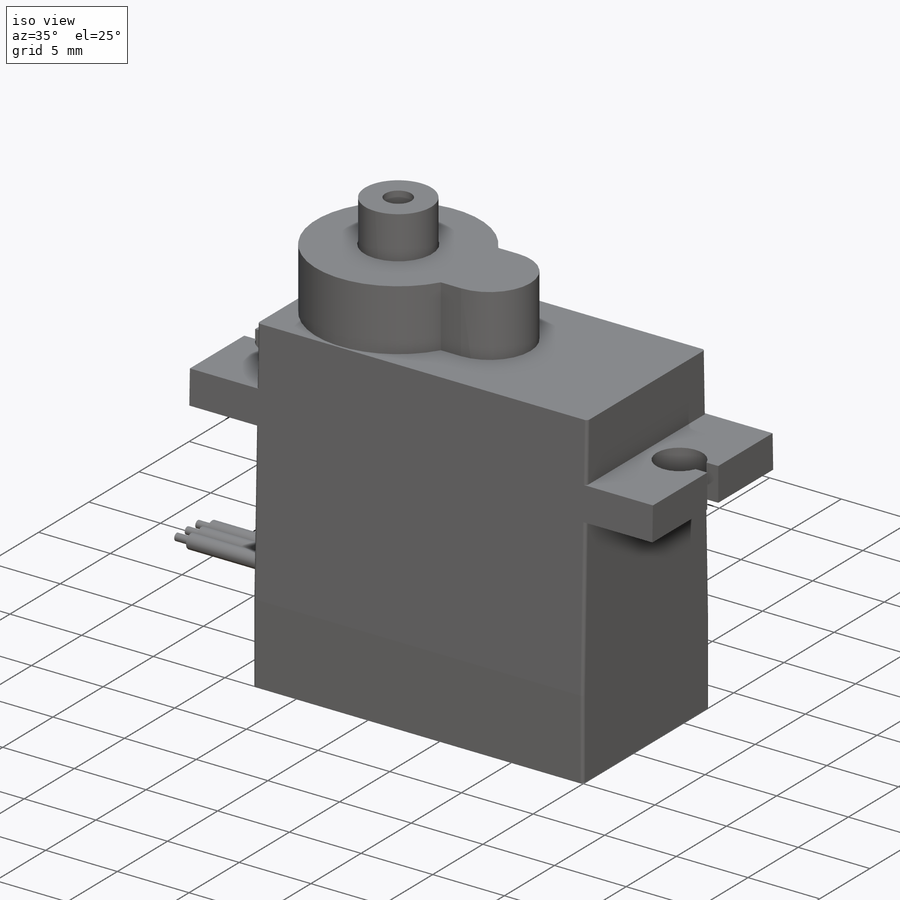
[diagram: iso view]
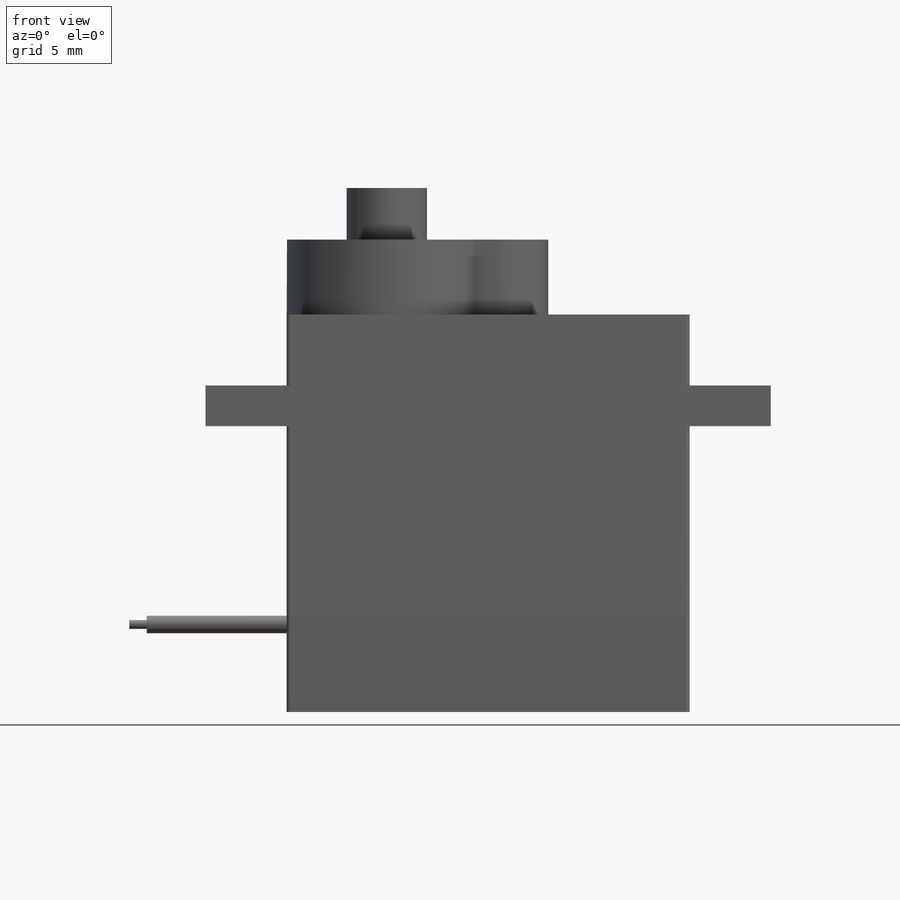
[diagram: front view]
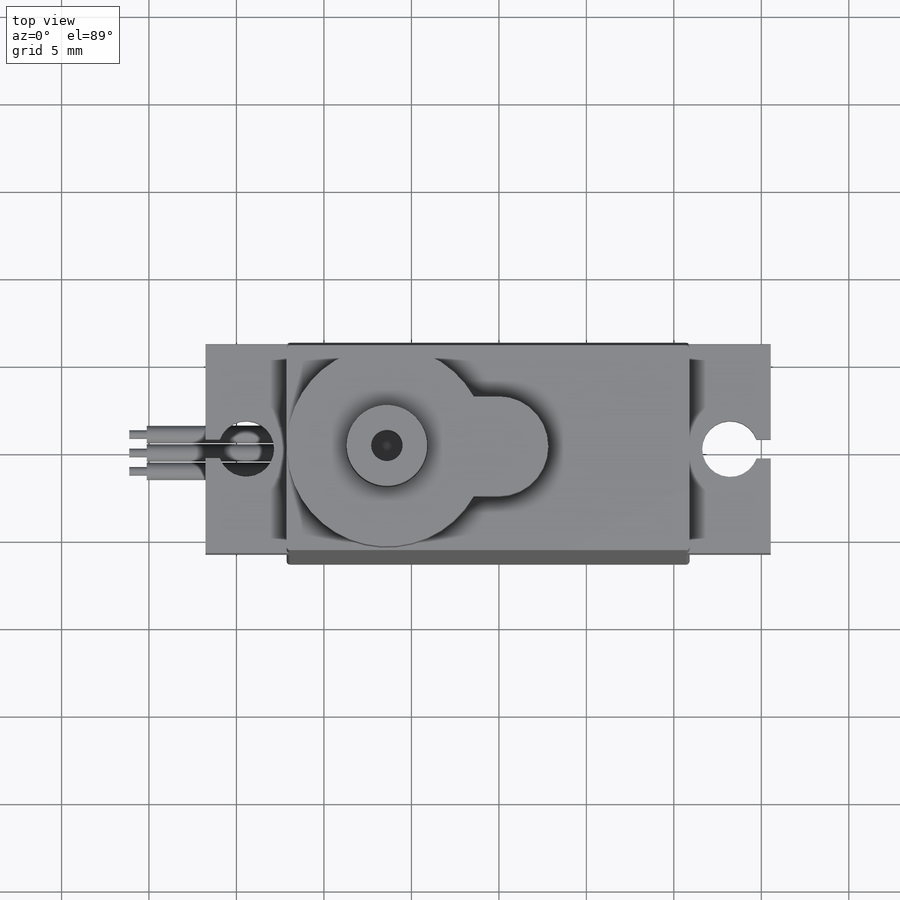
[diagram: top view]
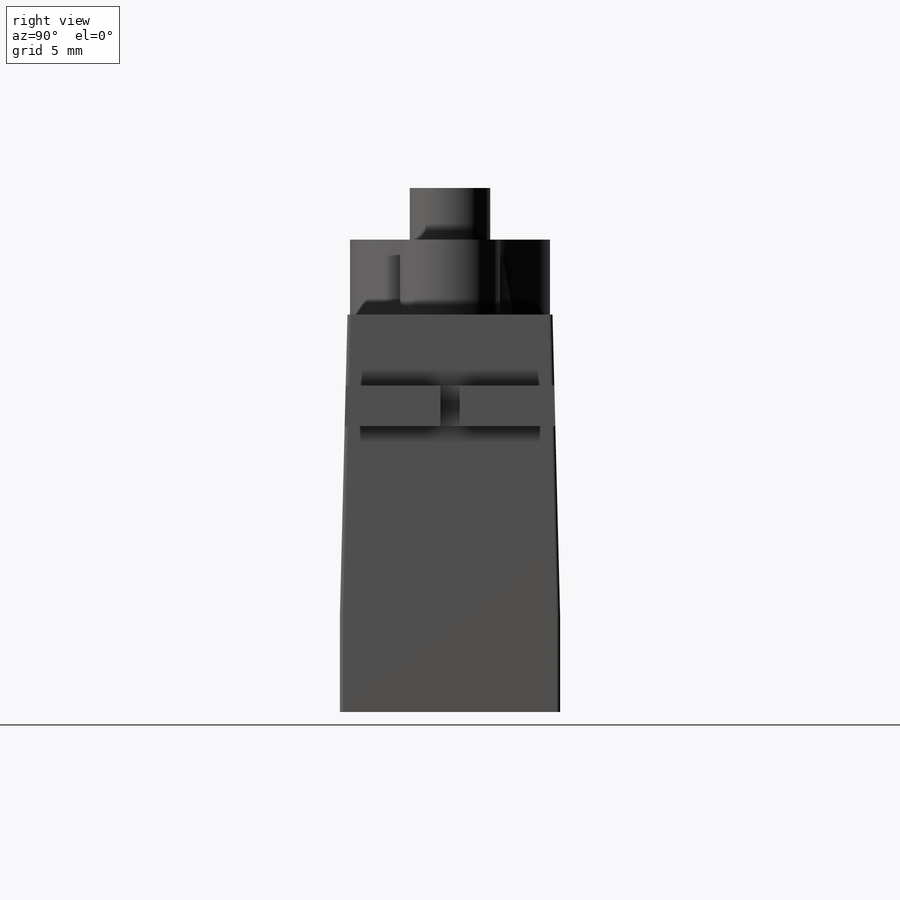
[diagram: right view]
SOLIDWORKS PART (.sldprt)
format: sldprt  version: not decoded by parser v0  size: 491,008 bytes
history: native  units: mm
features: sketch x13, cut_extrude x6, extrude x5, mirror x2, fillet x2, material x1, plane x1 + 2 further entries (+13 scaffold rows collapsed)
feature tree (45):
  scaffold x13  (default folders/planes/origin — collapsed)
  material  "Material <not specified>"
  "Y-Axis"
  "Z-Axis"
  sketch  "Sketch1"  dims[c1.D1=2.32mm c1.D2=32.31mm c1.D3=23.03mm c1.D4=16.34mm c1.D5=22.72mm c1.D6=7.13mm c1.D7=15.9mm c1.D8=0.9mm c1.D9=4.7mm c1.D10=29.3mm c1.D11=4.385mm c2.D8=~4.785394mm]
  extrude  "Boss-Extrude1"  Depth=12.59mm
  sketch  "Sketch2"  dims[D1=11.45mm D2=5.7mm D3=14.95mm]
  extrude  "Boss-Extrude2"  Depth=4.28mm
  sketch  "Sketch11"  dims[D1=5.86mm D2=5.5mm D3=17.22mm]
  cut_extrude  "Cut-Extrude4"  [1 undecoded]
  mirror  "Mirror1"
  sketch  "Sketch4"  dims[c1.D1=~2.471815mm c1.D2=28.5mm c1.D3=7.0mm c2.D1=~1.459646mm c2.D2=~1.178206mm c3.D1=1.09mm c3.D3=~1.983154mm]
  cut_extrude  "Cut-Extrude1"  [1 undecoded]
  sketch  "Sketch14"  dims[D1=11.515mm]
  plane  "Plane1"
  mirror  "Mirror2"
  sketch  "Sketch5"  dims[c1.D1=1.3mm c1.D4=1.95mm c1.D2=7.1mm c1.D3=18.5mm c1.D5=19.75mm c1.D6=8.7mm c2.D1=0.025mm]
  cut_extrude  "Cut-Extrude2"  Depth=1mm
  sketch  "Sketch6"  dims[c1.D3=1.0mm c1.D1=11.7mm c1.D2=2.1mm c1.D4=4.14mm c2.D1=4.5mm]
  extrude  "Boss-Extrude4"  Depth=8mm
  sketch  "Sketch7"  dims[D1=0.5mm]
  extrude  "Boss-Extrude5"  Depth=1mm
  sketch  "Sketch3"  dims[D1=9.6mm]
  fillet  "Fillet1"  Radius=0.3mm
  fillet  "Fillet3"  Radius=0.2mm
  sketch  "Sketch12"  dims[D1=4.6mm D2=1.8mm]
  extrude  "Boss-Extrude6"  Depth=2.95mm
  sketch  "Sketch13"  dims[D1=4.7mm]
  cut_extrude  "Cut-Extrude5"  Depth=5mm
  sketch  "Sketch15"  dims[D1=3.2mm]
  cut_extrude  "Cut-Extrude6"  Depth=10mm
  sketch  "Sketch16"  dims[D1=3.2mm]
  cut_extrude  "Cut-Extrude7"  Depth=10mm
decode coverage: 24 of 28 modeling features carry decoded parameters; 2 rows unclassified (native names shown)
note: ~ marks probable driven/reference dimensions
note: 2 parameter values undecoded
note: suppression state not decoded; provenance and decode notes live in map.json
